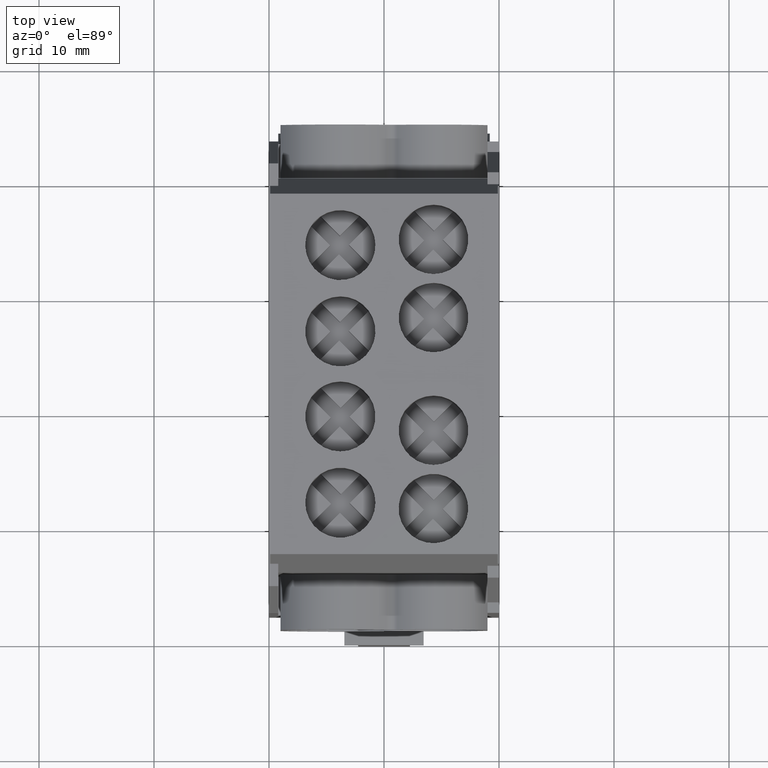
[diagram: clean part render]
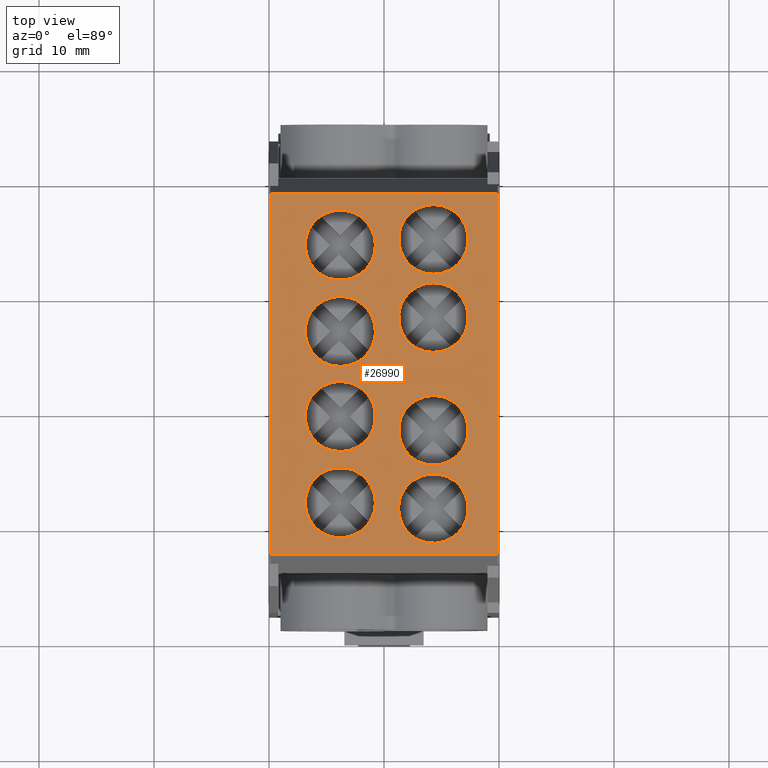
[diagram: same view with one face highlighted and labeled with its STEP entity id]
A machine part, top view. The second image highlights one B-rep face of the part: STEP entity #26990.
In plain terms, the highlighted planar face has unit normal (0, 0, -1).
Its self-contained STEP definition (entity closure, byte-faithful):
#2350=CARTESIAN_POINT('',(9.9,15.6743605818067,-0.945359338704989));
#2360=VERTEX_POINT('',#2350);
#2390=CARTESIAN_POINT('',(3.50023569358177E-15,15.6743605818067,
-0.945359338704989));
#2400=DIRECTION('',(1.,-4.93038065763132E-32,-5.55111512312577E-17));
#2410=VECTOR('',#2400,1.);
#2420=LINE('',#2390,#2410);
#2430=CARTESIAN_POINT('',(-9.9,15.6743605818067,-0.945359338704988));
#2440=VERTEX_POINT('',#2430);
#2450=EDGE_CURVE('',#2440,#2360,#2420,.T.);
#19910=CARTESIAN_POINT('',(3.80000000000001,6.75000000000002,
-0.945359338704989));
#19920=VERTEX_POINT('',#19910);
#19950=CARTESIAN_POINT('',(3.80000000000001,3.70000000000002,
-0.945359338704987));
#19960=DIRECTION('',(-5.55111512312577E-17,-7.04895318703268E-16,-1.));
#19970=DIRECTION('',(4.23158775779261E-16,1.,-7.04895318703268E-16));
#19980=AXIS2_PLACEMENT_3D('',#19950,#19960,#19970);
#19990=CIRCLE('',#19980,3.05);
#20000=CARTESIAN_POINT('',(3.80000000000001,0.650000000000019,
-0.945359338704985));
#20010=VERTEX_POINT('',#20000);
#20020=EDGE_CURVE('',#19920,#20010,#19990,.T.);
#22110=CARTESIAN_POINT('',(6.85000000000001,11.2,-0.945359338704988));
#22120=VERTEX_POINT('',#22110);
#22810=CARTESIAN_POINT('',(0.750000000000011,11.2,-0.945359338704988));
#22820=VERTEX_POINT('',#22810);
#22850=CARTESIAN_POINT('',(3.80000000000001,11.2,-0.945359338704988));
#22860=DIRECTION('',(5.55111512312577E-17,7.04895318703268E-16,1.));
#22870=DIRECTION('',(-1.,2.77555756156289E-16,5.55111512312575E-17));
#22880=AXIS2_PLACEMENT_3D('',#22850,#22860,#22870);
#22890=CIRCLE('',#22880,3.05);
#22900=CARTESIAN_POINT('',(5.53241161390705,13.7102290732123,
-0.94535933870499));
#22910=VERTEX_POINT('',#22900);
#22920=EDGE_CURVE('',#22910,#22820,#22890,.T.);
#22940=EDGE_CURVE('',#22120,#22910,#22890,.T.);
#25400=CARTESIAN_POINT('',(9.9,-13.9961613194521,-0.945359338704984));
#25410=DIRECTION('',(-5.55111512312577E-17,-1.79453955003165E-16,-1.));
#25420=DIRECTION('',(3.93421109410852E-32,1.,-1.79453955003165E-16));
#25430=AXIS2_PLACEMENT_3D('',#25400,#25410,#25420);
#25440=PLANE('',#25430);
#25450=CARTESIAN_POINT('',(3.8,-11.2,-0.945359338704984));
#25460=DIRECTION('',(-5.55111512312577E-17,-7.04895318703268E-16,-1.));
#25470=DIRECTION('',(-0.550742780039862,-0.834675020732,
6.18930880504856E-16));
#25480=AXIS2_PLACEMENT_3D('',#25450,#25460,#25470);
#25490=CIRCLE('',#25480,3.05);
#25500=CARTESIAN_POINT('',(2.12023452087842,-13.7457588132326,
-0.945359338704982));
#25510=VERTEX_POINT('',#25500);
#25520=CARTESIAN_POINT('',(5.47976547912158,-8.65424118676739,
-0.945359338704986));
#25530=VERTEX_POINT('',#25520);
#25540=EDGE_CURVE('',#25510,#25530,#25490,.T.);
#25550=ORIENTED_EDGE('',*,*,#25540,.T.);
#25560=CARTESIAN_POINT('',(2.15248865720071,-13.7667501583418,
-0.945359338704982));
#25570=VERTEX_POINT('',#25560);
#25580=EDGE_CURVE('',#25570,#25510,#25490,.T.);
#25590=ORIENTED_EDGE('',*,*,#25580,.T.);
#25600=EDGE_CURVE('',#25530,#25570,#25490,.T.);
#25610=ORIENTED_EDGE('',*,*,#25600,.T.);
#25620=EDGE_LOOP('',(#25610,#25590,#25550));
#25630=FACE_BOUND('',#25620,.T.);
#25640=ORIENTED_EDGE('',*,*,#20020,.T.);
#25650=CARTESIAN_POINT('',(1.28977092678776,1.96758838609298,
-0.945359338704985));
#25660=VERTEX_POINT('',#25650);
#25670=EDGE_CURVE('',#25660,#19920,#19990,.T.);
#25680=ORIENTED_EDGE('',*,*,#25670,.T.);
#25690=EDGE_CURVE('',#20010,#25660,#19990,.T.);
#25700=ORIENTED_EDGE('',*,*,#25690,.T.);
#25710=EDGE_LOOP('',(#25700,#25680,#25640));
#25720=FACE_BOUND('',#25710,.T.);
#25730=CARTESIAN_POINT('',(-4.29999999999999,4.90000000000002,
-0.945359338704986));
#25740=DIRECTION('',(-5.55111512312577E-17,-7.04895318703268E-16,-1.));
#25750=DIRECTION('',(-2.77555756156289E-16,-1.,7.04895318703268E-16));
#25760=AXIS2_PLACEMENT_3D('',#25730,#25740,#25750);
#25770=CIRCLE('',#25760,3.025);
#25780=CARTESIAN_POINT('',(-4.29999999999999,1.87500000000002,
-0.945359338704984));
#25790=VERTEX_POINT('',#25780);
#25800=CARTESIAN_POINT('',(-4.29999999999999,7.92500000000002,
-0.945359338704989));
#25810=VERTEX_POINT('',#25800);
#25820=EDGE_CURVE('',#25790,#25810,#25770,.T.);
#25830=ORIENTED_EDGE('',*,*,#25820,.T.);
#25840=CARTESIAN_POINT('',(-1.80774572099037,6.61443681970445,
-0.945359338704988));
#25850=VERTEX_POINT('',#25840);
#25860=EDGE_CURVE('',#25850,#25790,#25770,.T.);
#25870=ORIENTED_EDGE('',*,*,#25860,.T.);
#25880=EDGE_CURVE('',#25810,#25850,#25770,.T.);
#25890=ORIENTED_EDGE('',*,*,#25880,.T.);
#25900=EDGE_LOOP('',(#25890,#25870,#25830));
#25910=FACE_BOUND('',#25900,.T.);
#25920=CARTESIAN_POINT('',(3.80000000000001,-3.69999999999999,
-0.945359338704985));
#25930=DIRECTION('',(-5.55111512312577E-17,-7.04895318703268E-16,-1.));
#25940=DIRECTION('',(4.23158775779261E-16,1.,-7.04895318703268E-16));
#25950=AXIS2_PLACEMENT_3D('',#25920,#25930,#25940);
#25960=CIRCLE('',#25950,3.05);
#25970=CARTESIAN_POINT('',(3.80000000000001,-0.649999999999986,
-0.945359338704988));
#25980=VERTEX_POINT('',#25970);
#25990=CARTESIAN_POINT('',(3.80000000000001,-6.74999999999999,
-0.945359338704983));
#26000=VERTEX_POINT('',#25990);
#26010=EDGE_CURVE('',#25980,#26000,#25960,.T.);
#26020=ORIENTED_EDGE('',*,*,#26010,.T.);
#26030=CARTESIAN_POINT('',(2.10973102333289,-1.16120288590901,
-0.945359338704987));
#26040=VERTEX_POINT('',#26030);
#26050=EDGE_CURVE('',#26040,#25980,#25960,.T.);
#26060=ORIENTED_EDGE('',*,*,#26050,.T.);
#26070=EDGE_CURVE('',#26000,#26040,#25960,.T.);
#26080=ORIENTED_EDGE('',*,*,#26070,.T.);
#26090=EDGE_LOOP('',(#26080,#26060,#26020));
#26100=FACE_BOUND('',#26090,.T.);
#26110=CARTESIAN_POINT('',(-4.29999999999999,-4.89999999999998,
-0.945359338704985));
#26120=DIRECTION('',(-5.55111512312577E-17,-7.04895318703268E-16,-1.));
#26130=DIRECTION('',(5.71168456883603E-16,1.,-7.04895318703268E-16));
#26140=AXIS2_PLACEMENT_3D('',#26110,#26120,#26130);
#26150=CIRCLE('',#26140,3.025);
#26160=CARTESIAN_POINT('',(-4.3,-7.92499999999998,-0.945359338704983));
#26170=VERTEX_POINT('',#26160);
#26180=CARTESIAN_POINT('',(-4.29999999999999,-1.87499999999998,
-0.945359338704987));
#26190=VERTEX_POINT('',#26180);
#26200=EDGE_CURVE('',#26170,#26190,#26150,.T.);
#26210=ORIENTED_EDGE('',*,*,#26200,.T.);
#26220=CARTESIAN_POINT('',(-1.77923587166489,-6.57223599091123,
-0.945359338704984));
#26230=VERTEX_POINT('',#26220);
#26240=EDGE_CURVE('',#26230,#26170,#26150,.T.);
#26250=ORIENTED_EDGE('',*,*,#26240,.T.);
#26260=EDGE_CURVE('',#26190,#26230,#26150,.T.);
#26270=ORIENTED_EDGE('',*,*,#26260,.T.);
#26280=EDGE_LOOP('',(#26270,#26250,#26210));
#26290=FACE_BOUND('',#26280,.T.);
#26300=ORIENTED_EDGE('',*,*,#22920,.F.);
#26310=EDGE_CURVE('',#22820,#22120,#22890,.T.);
#26320=ORIENTED_EDGE('',*,*,#26310,.F.);
#26330=ORIENTED_EDGE('',*,*,#22940,.F.);
#26340=EDGE_LOOP('',(#26330,#26320,#26300));
#26350=FACE_BOUND('',#26340,.T.);
#26360=CARTESIAN_POINT('',(-4.2890695908856,11.7045275236975,
-0.945359338704987));
#26370=DIRECTION('',(-5.55111512312577E-17,-5.80952514931361E-16,-1.));
#26380=DIRECTION('',(0.707106781186547,-0.707106781186548,
3.7154315138825E-16));
#26390=AXIS2_PLACEMENT_3D('',#26360,#26370,#26380);
#26400=CIRCLE('',#26390,3.025);
#26410=CARTESIAN_POINT('',(-6.42806760397491,13.8435255367868,
-0.945359338704988));
#26420=VERTEX_POINT('',#26410);
#26430=CARTESIAN_POINT('',(-2.15007157779629,9.56552951060818,
-0.945359338704987));
#26440=VERTEX_POINT('',#26430);
#26450=EDGE_CURVE('',#26420,#26440,#26400,.T.);
#26460=ORIENTED_EDGE('',*,*,#26450,.T.);
#26470=CARTESIAN_POINT('',(-2.61722010304042,9.18350703786406,
-0.945359338704986));
#26480=VERTEX_POINT('',#26470);
#26490=EDGE_CURVE('',#26480,#26420,#26400,.T.);
#26500=ORIENTED_EDGE('',*,*,#26490,.T.);
#26510=EDGE_CURVE('',#26440,#26480,#26400,.T.);
#26520=ORIENTED_EDGE('',*,*,#26510,.T.);
#26530=EDGE_LOOP('',(#26520,#26500,#26460));
#26540=FACE_BOUND('',#26530,.T.);
#26550=CARTESIAN_POINT('',(-4.3,-11.7,-0.945359338704983));
#26560=DIRECTION('',(-5.55111512312577E-17,-7.04895318703268E-16,-1.));
#26570=DIRECTION('',(5.71168456883603E-16,1.,-7.04895318703268E-16));
#26580=AXIS2_PLACEMENT_3D('',#26550,#26560,#26570);
#26590=CIRCLE('',#26580,3.025);
#26600=CARTESIAN_POINT('',(-4.29999999999999,-8.67499999999998,
-0.945359338704986));
#26610=VERTEX_POINT('',#26600);
#26620=CARTESIAN_POINT('',(-4.3,-14.725,-0.945359338704981));
#26630=VERTEX_POINT('',#26620);
#26640=EDGE_CURVE('',#26610,#26630,#26590,.T.);
#26650=ORIENTED_EDGE('',*,*,#26640,.T.);
#26660=CARTESIAN_POINT('',(-6.82076412833511,-10.0277640090887,
-0.945359338704985));
#26670=VERTEX_POINT('',#26660);
#26680=EDGE_CURVE('',#26670,#26610,#26590,.T.);
#26690=ORIENTED_EDGE('',*,*,#26680,.T.);
#26700=EDGE_CURVE('',#26630,#26670,#26590,.T.);
#26710=ORIENTED_EDGE('',*,*,#26700,.T.);
#26720=EDGE_LOOP('',(#26710,#26690,#26650));
#26730=FACE_BOUND('',#26720,.T.);
#26740=ORIENTED_EDGE('',*,*,#2450,.F.);
#26750=CARTESIAN_POINT('',(9.9,6.81860839836016E-15,-0.945359338704986))
;
#26760=DIRECTION('',(-3.93421109410852E-32,-1.,1.79453955003165E-16));
#26770=VECTOR('',#26760,1.);
#26780=LINE('',#26750,#26770);
#26790=CARTESIAN_POINT('',(9.9,-15.6743605818067,-0.945359338704984));
#26800=VERTEX_POINT('',#26790);
#26810=EDGE_CURVE('',#2360,#26800,#26780,.T.);
#26820=ORIENTED_EDGE('',*,*,#26810,.F.);
#26830=CARTESIAN_POINT('',(3.50023569358177E-15,-15.6743605818067,
-0.945359338704983));
#26840=DIRECTION('',(1.,-5.55618562344202E-32,-5.55111512312577E-17));
#26850=VECTOR('',#26840,1.);
#26860=LINE('',#26830,#26850);
#26870=CARTESIAN_POINT('',(-9.9,-15.6743605818067,-0.945359338704983));
#26880=VERTEX_POINT('',#26870);
#26890=EDGE_CURVE('',#26880,#26800,#26860,.T.);
#26900=ORIENTED_EDGE('',*,*,#26890,.T.);
#26910=CARTESIAN_POINT('',(-9.9,6.81860839836016E-15,-0.945359338704985)
);
#26920=DIRECTION('',(1.13297820805555E-31,1.,-1.79453955003165E-16));
#26930=VECTOR('',#26920,1.);
#26940=LINE('',#26910,#26930);
#26950=EDGE_CURVE('',#26880,#2440,#26940,.T.);
#26960=ORIENTED_EDGE('',*,*,#26950,.F.);
#26970=EDGE_LOOP('',(#26960,#26900,#26820,#26740));
#26980=FACE_OUTER_BOUND('',#26970,.T.);
#26990=ADVANCED_FACE('',(#25630,#25720,#25910,#26100,#26290,#26350,
#26540,#26730,#26980),#25440,.F.);